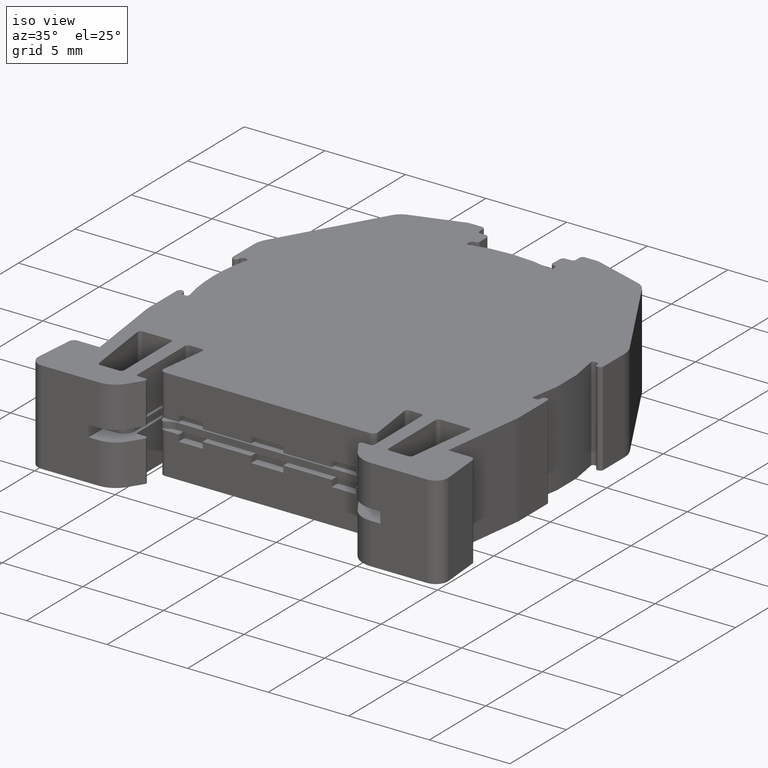
[diagram: clean part render]
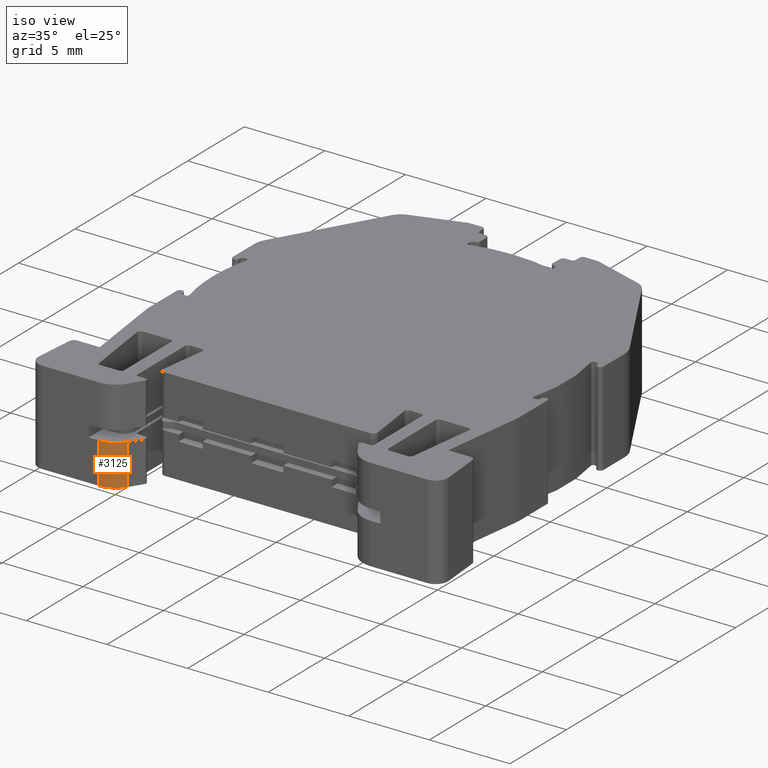
[diagram: same view with one face highlighted and labeled with its STEP entity id]
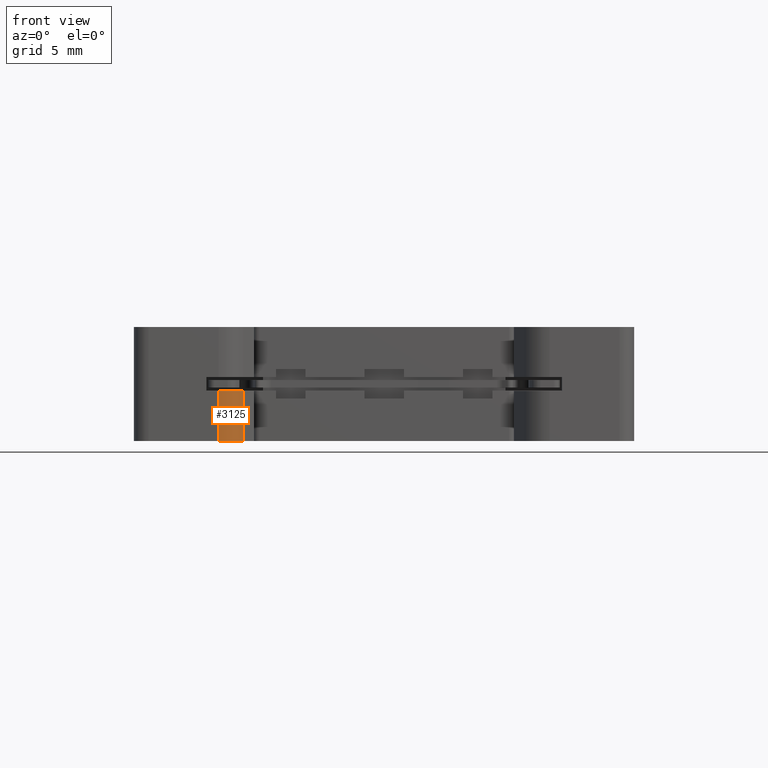
[diagram: same view with one face highlighted and labeled with its STEP entity id]
A machine part, iso view. The second image highlights one B-rep face of the part: STEP entity #3125.
A second angle (front view) of the same face is appended — the face is thin or edge-on in the first view.
In plain terms, the highlighted cylindrical surface (edge-blend (fillet) strip) has radius 1.5 mm, axis along (0, 0, -1).
Its self-contained STEP definition (entity closure, byte-faithful):
#22 = CARTESIAN_POINT ( 'NONE',  ( 1174.403809405311904, 579.4124862523078718, 0.000000000000000000 ) ) ;
#264 = AXIS2_PLACEMENT_3D ( 'NONE', #3135, #7811, #7856 ) ;
#277 = ORIENTED_EDGE ( 'NONE', *, *, #6016, .T. ) ;
#678 = CARTESIAN_POINT ( 'NONE',  ( 1174.403809405311904, 579.4124862523078718, 5.799999999999999822 ) ) ;
#795 = EDGE_LOOP ( 'NONE', ( #5453, #277, #1596, #3429 ) ) ;
#888 = VERTEX_POINT ( 'NONE', #2141 ) ;
#996 = DIRECTION ( 'NONE',  ( 1.000000000000000000, 0.000000000000000000, 0.000000000000000000 ) ) ;
#1094 = EDGE_CURVE ( 'NONE', #7045, #888, #2138, .T. ) ;
#1472 = DIRECTION ( 'NONE',  ( 0.000000000000000000, 0.000000000000000000, -1.000000000000000000 ) ) ;
#1507 = CARTESIAN_POINT ( 'NONE',  ( 1174.403809405311904, 580.9124862523069623, 5.799999999999999822 ) ) ;
#1570 = EDGE_CURVE ( 'NONE', #2662, #2715, #2932, .T. ) ;
#1596 = ORIENTED_EDGE ( 'NONE', *, *, #1570, .T. ) ;
#1868 = AXIS2_PLACEMENT_3D ( 'NONE', #2312, #6411, #996 ) ;
#2072 = DIRECTION ( 'NONE',  ( 0.000000000000000000, 0.000000000000000000, -1.000000000000000000 ) ) ;
#2138 = CIRCLE ( 'NONE', #1868, 1.499999999999834799 ) ;
#2141 = CARTESIAN_POINT ( 'NONE',  ( 1175.668896574031805, 580.1065368397879638, 2.550000000000000266 ) ) ;
#2312 = CARTESIAN_POINT ( 'NONE',  ( 1174.403809405311904, 580.9124862523069623, 2.550000000000000266 ) ) ;
#2662 = VERTEX_POINT ( 'NONE', #22 ) ;
#2715 = VERTEX_POINT ( 'NONE', #6714 ) ;
#2774 = CYLINDRICAL_SURFACE ( 'NONE', #8481, 1.499999999999834799 ) ;
#2829 = LINE ( 'NONE', #678, #7319 ) ;
#2932 = CIRCLE ( 'NONE', #264, 1.499999999999834799 ) ;
#3125 = ADVANCED_FACE ( 'NONE', ( #6128 ), #2774, .T. ) ;
#3135 = CARTESIAN_POINT ( 'NONE',  ( 1174.403809405311904, 580.9124862523069623, 0.000000000000000000 ) ) ;
#3351 = LINE ( 'NONE', #6704, #7852 ) ;
#3429 = ORIENTED_EDGE ( 'NONE', *, *, #6511, .F. ) ;
#4425 = CARTESIAN_POINT ( 'NONE',  ( 1174.403809405311904, 579.4124862523078718, 2.550000000000000266 ) ) ;
#5453 = ORIENTED_EDGE ( 'NONE', *, *, #1094, .F. ) ;
#6016 = EDGE_CURVE ( 'NONE', #7045, #2662, #2829, .T. ) ;
#6128 = FACE_OUTER_BOUND ( 'NONE', #795, .T. ) ;
#6219 = DIRECTION ( 'NONE',  ( -1.000000000000000000, 0.000000000000000000, 0.000000000000000000 ) ) ;
#6411 = DIRECTION ( 'NONE',  ( 0.000000000000000000, 0.000000000000000000, 1.000000000000000000 ) ) ;
#6511 = EDGE_CURVE ( 'NONE', #888, #2715, #3351, .T. ) ;
#6704 = CARTESIAN_POINT ( 'NONE',  ( 1175.668896574031805, 580.1065368397879638, 5.799999999999999822 ) ) ;
#6714 = CARTESIAN_POINT ( 'NONE',  ( 1175.668896574031805, 580.1065368397879638, 0.000000000000000000 ) ) ;
#6838 = DIRECTION ( 'NONE',  ( 0.000000000000000000, 0.000000000000000000, -1.000000000000000000 ) ) ;
#7045 = VERTEX_POINT ( 'NONE', #4425 ) ;
#7319 = VECTOR ( 'NONE', #1472, 1000.000000000000000 ) ;
#7811 = DIRECTION ( 'NONE',  ( 0.000000000000000000, 0.000000000000000000, 1.000000000000000000 ) ) ;
#7852 = VECTOR ( 'NONE', #2072, 1000.000000000000000 ) ;
#7856 = DIRECTION ( 'NONE',  ( 1.000000000000000000, 0.000000000000000000, 0.000000000000000000 ) ) ;
#8481 = AXIS2_PLACEMENT_3D ( 'NONE', #1507, #6838, #6219 ) ;